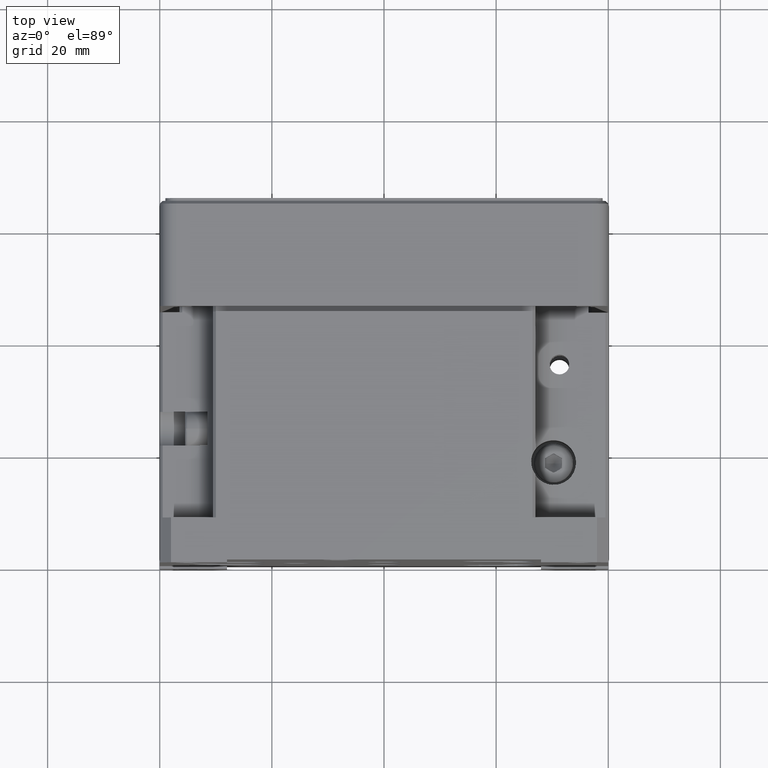
[diagram: clean part render]
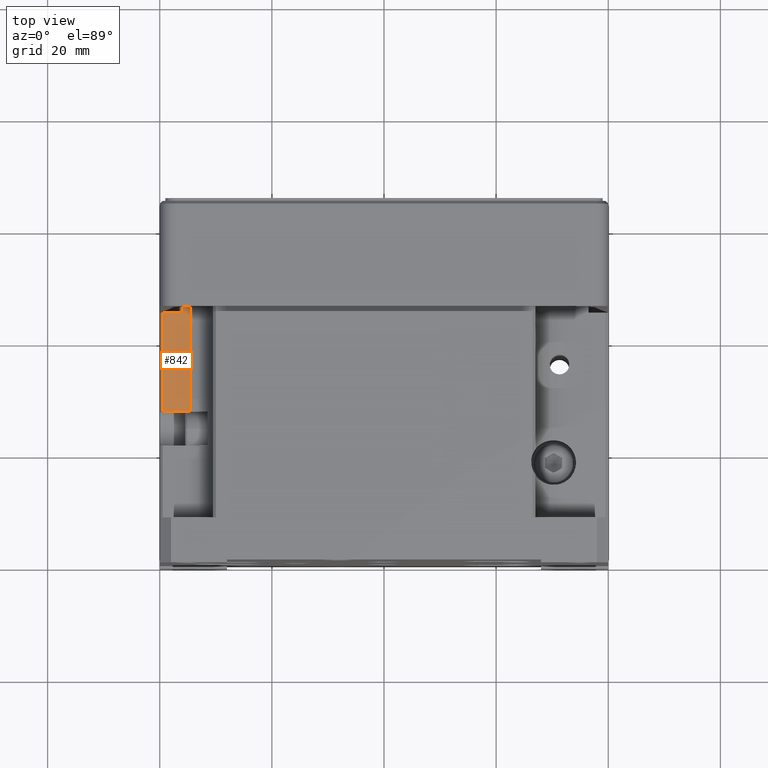
[diagram: same view with one face highlighted and labeled with its STEP entity id]
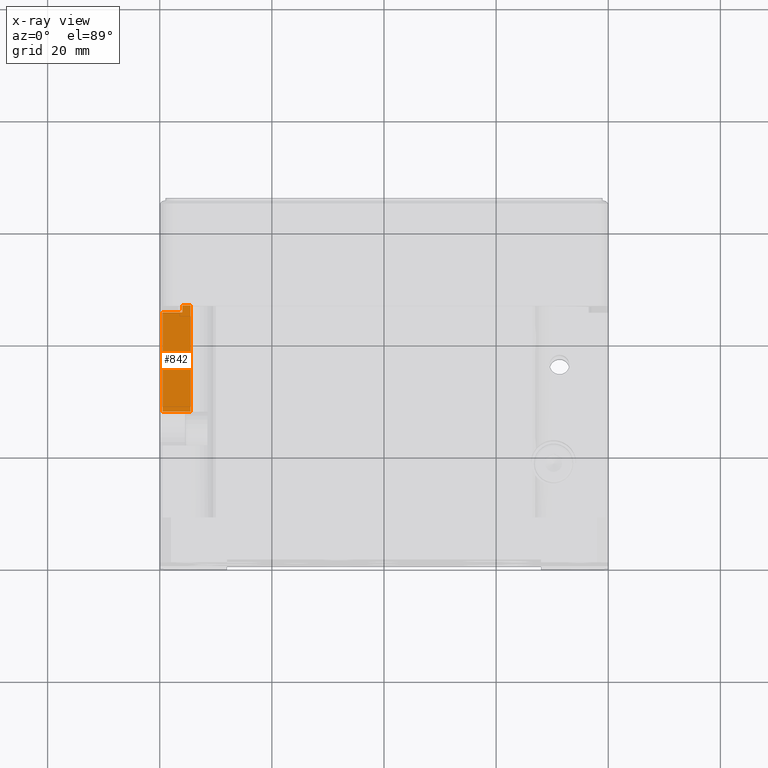
[diagram: x-ray of the same camera — body ghosted, the highlighted face saturated]
A machine part, top view. The second image highlights one B-rep face of the part: STEP entity #842.
The next image is the same camera in x-ray: the body ghosted, the highlighted face saturated — about 0% of this face is hidden behind the body in this view.
In plain terms, the highlighted planar face has unit normal (0, 0, -1).
Its self-contained STEP definition (entity closure, byte-faithful):
#842 = ADVANCED_FACE ( 'NONE', ( #2696 ), #11541, .F. ) ;
#1395 = VERTEX_POINT ( 'NONE', #11459 ) ;
#2542 = LINE ( 'NONE', #14012, #4972 ) ;
#2696 = FACE_OUTER_BOUND ( 'NONE', #4673, .T. ) ;
#2741 = EDGE_CURVE ( 'NONE', #25899, #12106, #29334, .T. ) ;
#3561 = CARTESIAN_POINT ( 'NONE',  ( -40.00000000000000711, 27.00000000000000711, 30.49999999999999289 ) ) ;
#3654 = AXIS2_PLACEMENT_3D ( 'NONE', #34249, #5327, #31629 ) ;
#4136 = DIRECTION ( 'NONE',  ( -1.000000000000000000, -0.000000000000000000, -0.000000000000000000 ) ) ;
#4673 = EDGE_LOOP ( 'NONE', ( #21946, #4811, #31042, #7180, #17118, #33285 ) ) ;
#4811 = ORIENTED_EDGE ( 'NONE', *, *, #2741, .T. ) ;
#4972 = VECTOR ( 'NONE', #17212, 1000.000000000000000 ) ;
#5327 = DIRECTION ( 'NONE',  ( 0.000000000000000000, 0.000000000000000000, -1.000000000000000000 ) ) ;
#6262 = CARTESIAN_POINT ( 'NONE',  ( -35.99999999999997868, 46.00000000000000711, 30.49999999999998934 ) ) ;
#7180 = ORIENTED_EDGE ( 'NONE', *, *, #16982, .F. ) ;
#8017 = CARTESIAN_POINT ( 'NONE',  ( -34.50000000000000711, 46.00000000000000711, 30.49999999999999289 ) ) ;
#8195 = DIRECTION ( 'NONE',  ( 0.000000000000000000, 1.000000000000000000, 0.000000000000000000 ) ) ;
#8841 = CARTESIAN_POINT ( 'NONE',  ( -39.49999999999997868, 44.75000000000000711, 30.49999999999998934 ) ) ;
#10695 = CARTESIAN_POINT ( 'NONE',  ( -40.00000000000000711, 44.75000000000000711, 30.49999999999999289 ) ) ;
#11202 = CARTESIAN_POINT ( 'NONE',  ( -39.49999999999997868, 8.000000000000000000, 30.49999999999999289 ) ) ;
#11459 = CARTESIAN_POINT ( 'NONE',  ( -39.49999999999997868, 27.00000000000000711, 30.49999999999998934 ) ) ;
#11541 = PLANE ( 'NONE',  #3654 ) ;
#12106 = VERTEX_POINT ( 'NONE', #8017 ) ;
#12419 = CARTESIAN_POINT ( 'NONE',  ( -23.01471862576143224, 46.00000000000000711, 30.49999999999999289 ) ) ;
#12995 = EDGE_CURVE ( 'NONE', #24461, #13473, #13343, .T. ) ;
#13343 = LINE ( 'NONE', #10695, #28251 ) ;
#13473 = VERTEX_POINT ( 'NONE', #23575 ) ;
#14012 = CARTESIAN_POINT ( 'NONE',  ( -35.99999999999997868, 8.000000000000000000, 30.49999999999999289 ) ) ;
#14852 = LINE ( 'NONE', #3561, #21246 ) ;
#15595 = DIRECTION ( 'NONE',  ( -1.000000000000000000, 0.000000000000000000, -0.000000000000000000 ) ) ;
#16346 = DIRECTION ( 'NONE',  ( 1.000000000000000000, -0.000000000000000000, 0.000000000000000000 ) ) ;
#16982 = EDGE_CURVE ( 'NONE', #13473, #33484, #2542, .T. ) ;
#17118 = ORIENTED_EDGE ( 'NONE', *, *, #12995, .F. ) ;
#17212 = DIRECTION ( 'NONE',  ( 0.000000000000000000, 1.000000000000000000, 0.000000000000000000 ) ) ;
#18181 = VECTOR ( 'NONE', #23889, 1000.000000000000000 ) ;
#18240 = LINE ( 'NONE', #12419, #30535 ) ;
#18543 = EDGE_CURVE ( 'NONE', #25899, #1395, #14852, .T. ) ;
#20508 = CARTESIAN_POINT ( 'NONE',  ( -34.50000000000000711, 8.000000000000000000, 30.49999999999998934 ) ) ;
#20852 = EDGE_CURVE ( 'NONE', #12106, #33484, #18240, .T. ) ;
#21246 = VECTOR ( 'NONE', #15595, 1000.000000000000000 ) ;
#21946 = ORIENTED_EDGE ( 'NONE', *, *, #18543, .F. ) ;
#22061 = EDGE_CURVE ( 'NONE', #1395, #24461, #30921, .T. ) ;
#22844 = VECTOR ( 'NONE', #8195, 1000.000000000000000 ) ;
#23575 = CARTESIAN_POINT ( 'NONE',  ( -35.99999999999997868, 44.75000000000000711, 30.49999999999998934 ) ) ;
#23889 = DIRECTION ( 'NONE',  ( -0.000000000000000000, 1.000000000000000000, -0.000000000000000000 ) ) ;
#24461 = VERTEX_POINT ( 'NONE', #8841 ) ;
#25899 = VERTEX_POINT ( 'NONE', #27897 ) ;
#27897 = CARTESIAN_POINT ( 'NONE',  ( -34.50000000000000711, 27.00000000000000711, 30.49999999999999289 ) ) ;
#28251 = VECTOR ( 'NONE', #16346, 1000.000000000000000 ) ;
#29334 = LINE ( 'NONE', #20508, #18181 ) ;
#30535 = VECTOR ( 'NONE', #4136, 1000.000000000000000 ) ;
#30921 = LINE ( 'NONE', #11202, #22844 ) ;
#31042 = ORIENTED_EDGE ( 'NONE', *, *, #20852, .T. ) ;
#31629 = DIRECTION ( 'NONE',  ( -1.000000000000000000, 0.000000000000000000, -0.000000000000000000 ) ) ;
#33285 = ORIENTED_EDGE ( 'NONE', *, *, #22061, .F. ) ;
#33484 = VERTEX_POINT ( 'NONE', #6262 ) ;
#34249 = CARTESIAN_POINT ( 'NONE',  ( -40.00000000000000711, 8.000000000000000000, 30.49999999999999289 ) ) ;